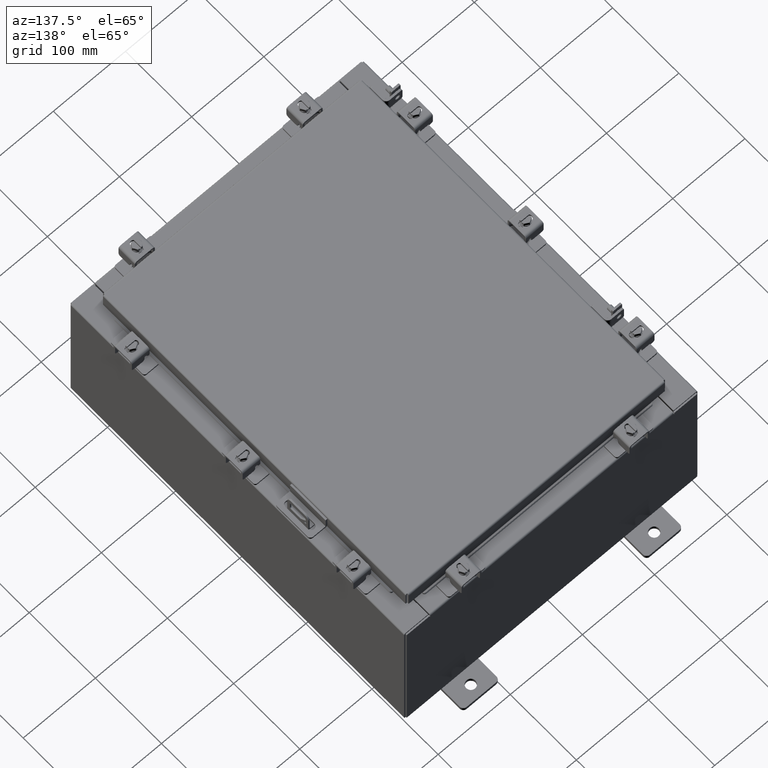
[diagram: clean part render]
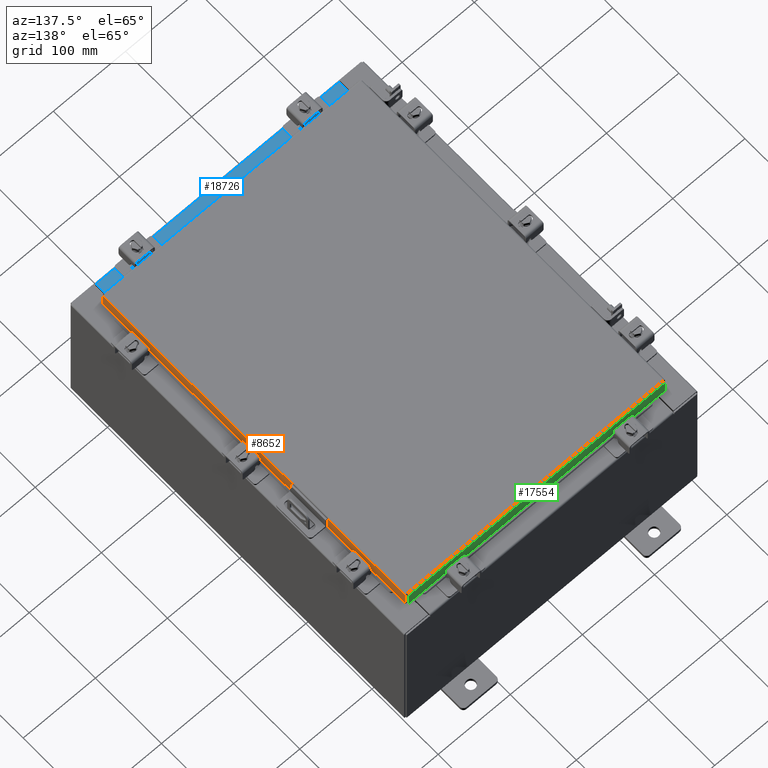
[diagram: same view with three faces highlighted in distinct colors, each labeled with its STEP entity id]
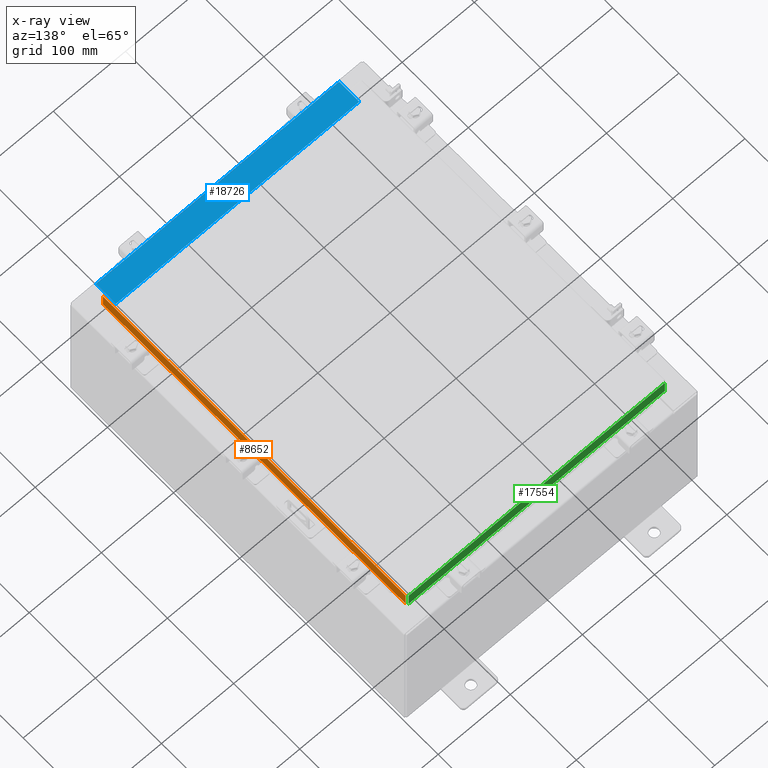
[diagram: x-ray of the same camera — body ghosted, the three highlighted faces saturated]
A machine part, auxiliary view with three faces highlighted in distinct colors.
The next image is the same camera in x-ray (body ghosted, the three faces saturated) — at least one of them is partly hidden behind the body in this view.
Their STEP definitions:

[orange] entity #8652 — the highlighted planar face has unit normal (1, 0, 0).
#625 = CARTESIAN_POINT ( 'NONE',  ( 7.077999999999996700, -9.005157864376272400, -0.07470000000000015500 ) ) ;
#976 = LINE ( 'NONE', #16241, #9678 ) ;
#1817 = ORIENTED_EDGE ( 'NONE', *, *, #15233, .F. ) ;
#2123 = DIRECTION ( 'NONE',  ( 0.0000000000000000000, -1.000000000000000000, 0.0000000000000000000 ) ) ;
#2505 = LINE ( 'NONE', #5254, #6595 ) ;
#4061 = DIRECTION ( 'NONE',  ( -1.693590113897317100E-031, -1.000000000000000000, 6.008022858289562200E-017 ) ) ;
#4409 = DIRECTION ( 'NONE',  ( -2.818880942772360100E-015, -6.982962677686267500E-015, 1.000000000000000000 ) ) ;
#4752 = LINE ( 'NONE', #6748, #8822 ) ;
#4958 = ORIENTED_EDGE ( 'NONE', *, *, #19438, .T. ) ;
#5254 = CARTESIAN_POINT ( 'NONE',  ( 7.077999999999996700, 9.005157864376265300, 8.304817900739359900E-014 ) ) ;
#5494 = CARTESIAN_POINT ( 'NONE',  ( 7.077999999999996700, -8.255157864376263500, -0.8500000000000020900 ) ) ;
#5655 = CARTESIAN_POINT ( 'NONE',  ( 7.077999999999999400, -9.094000000000003000, -0.8499999999999999800 ) ) ;
#5695 = LINE ( 'NONE', #15446, #19568 ) ;
#5783 = EDGE_CURVE ( 'NONE', #18057, #11327, #976, .T. ) ;
#5983 = CARTESIAN_POINT ( 'NONE',  ( 7.077999999999999400, 9.005157864376270600, -0.8499999999999999800 ) ) ;
#6595 = VECTOR ( 'NONE', #20845, 39.37007874015748100 ) ;
#6748 = CARTESIAN_POINT ( 'NONE',  ( 7.077999999999999400, -9.094000000000003000, -0.8499999999999999800 ) ) ;
#6780 = ORIENTED_EDGE ( 'NONE', *, *, #13041, .F. ) ;
#7466 = CARTESIAN_POINT ( 'NONE',  ( 7.077999999999996700, 8.255157864376267100, -0.8500000000000020900 ) ) ;
#8377 = PLANE ( 'NONE',  #19130 ) ;
#8652 = ADVANCED_FACE ( 'NONE', ( #18513 ), #8377, .T. ) ;
#8822 = VECTOR ( 'NONE', #15513, 39.37007874015748100 ) ;
#8844 = VERTEX_POINT ( 'NONE', #5494 ) ;
#9678 = VECTOR ( 'NONE', #4061, 39.37007874015748100 ) ;
#9777 = EDGE_LOOP ( 'NONE', ( #6780, #1817, #14947, #19397, #4958, #22022 ) ) ;
#10140 = DIRECTION ( 'NONE',  ( 2.818880942772360100E-015, 0.0000000000000000000, -1.000000000000000000 ) ) ;
#10516 = EDGE_CURVE ( 'NONE', #14311, #8844, #5695, .T. ) ;
#10705 = CARTESIAN_POINT ( 'NONE',  ( 7.077999999999999400, -9.005157864376267100, -0.8499999999999999800 ) ) ;
#10780 = VECTOR ( 'NONE', #2123, 39.37007874015748100 ) ;
#10977 = CARTESIAN_POINT ( 'NONE',  ( 7.077999999999996700, 9.005157864376265300, -0.08769999999999918100 ) ) ;
#11327 = VERTEX_POINT ( 'NONE', #14320 ) ;
#13041 = EDGE_CURVE ( 'NONE', #19243, #11327, #22486, .T. ) ;
#13679 = DIRECTION ( 'NONE',  ( 0.0000000000000000000, -1.000000000000000000, 0.0000000000000000000 ) ) ;
#13716 = VERTEX_POINT ( 'NONE', #5983 ) ;
#14301 = LINE ( 'NONE', #5655, #10780 ) ;
#14311 = VERTEX_POINT ( 'NONE', #7466 ) ;
#14320 = CARTESIAN_POINT ( 'NONE',  ( 7.077999999999996700, -9.005157864376272400, -0.08769999999999918100 ) ) ;
#14947 = ORIENTED_EDGE ( 'NONE', *, *, #10516, .F. ) ;
#15233 = EDGE_CURVE ( 'NONE', #8844, #19243, #4752, .T. ) ;
#15446 = CARTESIAN_POINT ( 'NONE',  ( 7.077999999999996700, 8.255157864376267100, -0.8500000000000020900 ) ) ;
#15513 = DIRECTION ( 'NONE',  ( 0.0000000000000000000, -1.000000000000000000, 0.0000000000000000000 ) ) ;
#15973 = EDGE_CURVE ( 'NONE', #13716, #14311, #14301, .T. ) ;
#16241 = CARTESIAN_POINT ( 'NONE',  ( 7.077999999999996700, -5.269035934039632300E-018, -0.08769999999999918100 ) ) ;
#17857 = VECTOR ( 'NONE', #4409, 39.37007874015748100 ) ;
#18057 = VERTEX_POINT ( 'NONE', #10977 ) ;
#18513 = FACE_OUTER_BOUND ( 'NONE', #9777, .T. ) ;
#18791 = CARTESIAN_POINT ( 'NONE',  ( 7.077999999999996700, 0.0000000000000000000, 1.966930555438269700E-014 ) ) ;
#19130 = AXIS2_PLACEMENT_3D ( 'NONE', #18791, #20569, #10140 ) ;
#19243 = VERTEX_POINT ( 'NONE', #10705 ) ;
#19397 = ORIENTED_EDGE ( 'NONE', *, *, #15973, .F. ) ;
#19438 = EDGE_CURVE ( 'NONE', #13716, #18057, #2505, .T. ) ;
#19568 = VECTOR ( 'NONE', #13679, 39.37007874015748100 ) ;
#20569 = DIRECTION ( 'NONE',  ( 1.000000000000000000, 0.0000000000000000000, 2.818880942772360100E-015 ) ) ;
#20845 = DIRECTION ( 'NONE',  ( -2.818880942772360100E-015, -6.982962677686267500E-015, 1.000000000000000000 ) ) ;
#22022 = ORIENTED_EDGE ( 'NONE', *, *, #5783, .T. ) ;
#22486 = LINE ( 'NONE', #625, #17857 ) ;

[blue] entity #18726 — the highlighted planar face has unit normal (-0, -0, 1).
#252 = VERTEX_POINT ( 'NONE', #21983 ) ;
#738 = EDGE_LOOP ( 'NONE', ( #17383, #16889, #4032, #20222 ) ) ;
#1307 = AXIS2_PLACEMENT_3D ( 'NONE', #19787, #16358, #5932 ) ;
#1538 = LINE ( 'NONE', #21579, #21954 ) ;
#1633 = EDGE_CURVE ( 'NONE', #20615, #252, #13666, .T. ) ;
#2678 = DIRECTION ( 'NONE',  ( -1.000000000000000000, -5.376446204297056400E-017, -1.665334536937734800E-016 ) ) ;
#3771 = DIRECTION ( 'NONE',  ( -5.376446204296997200E-017, -1.000000000000000000, 3.599933028129398900E-015 ) ) ;
#4016 = PLANE ( 'NONE',  #1307 ) ;
#4032 = ORIENTED_EDGE ( 'NONE', *, *, #1633, .F. ) ;
#5932 = DIRECTION ( 'NONE',  ( -5.376446204296997200E-017, -1.000000000000000000, 3.599933028129398900E-015 ) ) ;
#6426 = CARTESIAN_POINT ( 'NONE',  ( 6.637199999999999100, -0.08770000000000026400, 4.000000000000000900 ) ) ;
#6611 = CARTESIAN_POINT ( 'NONE',  ( -6.637200000000000000, -1.287299999999999200, 4.000000000000003600 ) ) ;
#9147 = LINE ( 'NONE', #9928, #13778 ) ;
#9928 = CARTESIAN_POINT ( 'NONE',  ( 6.637200000000000900, -1.287300000000000300, 4.000000000000003600 ) ) ;
#12886 = DIRECTION ( 'NONE',  ( 5.376446204296997200E-017, 1.000000000000000000, -3.599933028129398900E-015 ) ) ;
#13233 = VERTEX_POINT ( 'NONE', #6611 ) ;
#13666 = LINE ( 'NONE', #16731, #18294 ) ;
#13778 = VECTOR ( 'NONE', #16922, 39.37007874015748100 ) ;
#13899 = EDGE_CURVE ( 'NONE', #252, #13233, #9147, .T. ) ;
#14034 = VECTOR ( 'NONE', #2678, 39.37007874015748100 ) ;
#14490 = FACE_OUTER_BOUND ( 'NONE', #738, .T. ) ;
#14560 = LINE ( 'NONE', #20031, #14034 ) ;
#15311 = CARTESIAN_POINT ( 'NONE',  ( -6.637200000000000000, -0.08770000000000026400, 3.999999999999998200 ) ) ;
#15512 = EDGE_CURVE ( 'NONE', #13233, #20697, #1538, .T. ) ;
#16234 = EDGE_CURVE ( 'NONE', #20615, #20697, #14560, .T. ) ;
#16358 = DIRECTION ( 'NONE',  ( 1.665334536937734800E-016, 3.599933028129398900E-015, 1.000000000000000000 ) ) ;
#16731 = CARTESIAN_POINT ( 'NONE',  ( 6.637200000000000000, -1.300300000000000200, 4.000000000000004400 ) ) ;
#16889 = ORIENTED_EDGE ( 'NONE', *, *, #13899, .F. ) ;
#16922 = DIRECTION ( 'NONE',  ( -1.000000000000000000, -5.376446204297056400E-017, -1.665334536937734800E-016 ) ) ;
#17383 = ORIENTED_EDGE ( 'NONE', *, *, #15512, .F. ) ;
#18294 = VECTOR ( 'NONE', #3771, 39.37007874015748100 ) ;
#18726 = ADVANCED_FACE ( 'NONE', ( #14490 ), #4016, .T. ) ;
#19787 = CARTESIAN_POINT ( 'NONE',  ( 6.661338148662792400E-016, 1.311287036958846300E-014, 3.999999999999999600 ) ) ;
#20031 = CARTESIAN_POINT ( 'NONE',  ( 6.614186711504172100E-016, -0.08770000000000026400, 3.999999999999999600 ) ) ;
#20222 = ORIENTED_EDGE ( 'NONE', *, *, #16234, .T. ) ;
#20615 = VERTEX_POINT ( 'NONE', #6426 ) ;
#20697 = VERTEX_POINT ( 'NONE', #15311 ) ;
#21579 = CARTESIAN_POINT ( 'NONE',  ( -6.637200000000000000, -0.07470000000000015500, 3.999999999999998200 ) ) ;
#21954 = VECTOR ( 'NONE', #12886, 39.37007874015748100 ) ;
#21983 = CARTESIAN_POINT ( 'NONE',  ( 6.637200000000000000, -1.287300000000000300, 4.000000000000004400 ) ) ;

[green] entity #17554 — the highlighted planar face has unit normal (0, -1, -0).
#343 = ORIENTED_EDGE ( 'NONE', *, *, #18664, .F. ) ;
#437 = VECTOR ( 'NONE', #12582, 39.37007874015748100 ) ;
#1188 = VECTOR ( 'NONE', #14352, 39.37007874015748100 ) ;
#1631 = DIRECTION ( 'NONE',  ( -0.0000000000000000000, 2.818880942772353800E-015, -1.000000000000000000 ) ) ;
#1738 = LINE ( 'NONE', #12047, #5830 ) ;
#2331 = ORIENTED_EDGE ( 'NONE', *, *, #21551, .F. ) ;
#2723 = VERTEX_POINT ( 'NONE', #14392 ) ;
#2928 = EDGE_LOOP ( 'NONE', ( #2331, #16581, #16392, #13281, #343, #10703 ) ) ;
#4578 = VERTEX_POINT ( 'NONE', #11258 ) ;
#5381 = AXIS2_PLACEMENT_3D ( 'NONE', #16566, #21811, #11382 ) ;
#5495 = LINE ( 'NONE', #7754, #18803 ) ;
#5830 = VECTOR ( 'NONE', #1631, 39.37007874015748100 ) ;
#6286 = LINE ( 'NONE', #16838, #14983 ) ;
#6619 = EDGE_CURVE ( 'NONE', #2723, #8742, #1738, .T. ) ;
#7377 = CARTESIAN_POINT ( 'NONE',  ( -7.078000000000003800, 9.093999999999999400, -0.8500000000000010900 ) ) ;
#7754 = CARTESIAN_POINT ( 'NONE',  ( -6.239157864376272400, 9.093999999999999400, -0.8500000000000020900 ) ) ;
#7850 = EDGE_CURVE ( 'NONE', #4578, #11844, #5495, .T. ) ;
#8357 = CARTESIAN_POINT ( 'NONE',  ( 6.989157864376266200, 9.093999999999999400, -0.8499999999999999800 ) ) ;
#8601 = EDGE_CURVE ( 'NONE', #11390, #14672, #6286, .T. ) ;
#8742 = VERTEX_POINT ( 'NONE', #10367 ) ;
#9088 = CARTESIAN_POINT ( 'NONE',  ( -7.078000000000003800, 9.093999999999999400, -0.8500000000000010900 ) ) ;
#10335 = CARTESIAN_POINT ( 'NONE',  ( -7.078000000000003800, 9.093999999999995900, -0.08770000000000026400 ) ) ;
#10367 = CARTESIAN_POINT ( 'NONE',  ( -6.989157864376273300, 9.093999999999999400, -0.8500000000000010900 ) ) ;
#10441 = LINE ( 'NONE', #7377, #1188 ) ;
#10445 = CARTESIAN_POINT ( 'NONE',  ( 6.239157864376261700, 9.093999999999999400, -0.8500000000000020900 ) ) ;
#10703 = ORIENTED_EDGE ( 'NONE', *, *, #6619, .F. ) ;
#11155 = DIRECTION ( 'NONE',  ( 1.000000000000000000, -0.0000000000000000000, -0.0000000000000000000 ) ) ;
#11258 = CARTESIAN_POINT ( 'NONE',  ( -6.239157864376272400, 9.093999999999999400, -0.8500000000000020900 ) ) ;
#11382 = DIRECTION ( 'NONE',  ( 0.0000000000000000000, 2.818880942772353800E-015, -1.000000000000000000 ) ) ;
#11390 = VERTEX_POINT ( 'NONE', #12717 ) ;
#11565 = FACE_OUTER_BOUND ( 'NONE', #2928, .T. ) ;
#11725 = DIRECTION ( 'NONE',  ( 0.0000000000000000000, 2.818880942772353800E-015, -1.000000000000000000 ) ) ;
#11844 = VERTEX_POINT ( 'NONE', #10445 ) ;
#12047 = CARTESIAN_POINT ( 'NONE',  ( -6.989157864376273300, 9.093999999999995900, -0.07470000000000015500 ) ) ;
#12202 = VECTOR ( 'NONE', #20756, 39.37007874015748100 ) ;
#12582 = DIRECTION ( 'NONE',  ( 1.000000000000000000, 4.379057701015054300E-047, 1.254380613084043100E-016 ) ) ;
#12717 = CARTESIAN_POINT ( 'NONE',  ( 6.989157864376266200, 9.093999999999995900, -0.08769999999999918100 ) ) ;
#13054 = PLANE ( 'NONE',  #5381 ) ;
#13281 = ORIENTED_EDGE ( 'NONE', *, *, #7850, .F. ) ;
#13575 = EDGE_CURVE ( 'NONE', #11844, #14672, #14282, .T. ) ;
#14282 = LINE ( 'NONE', #9088, #437 ) ;
#14352 = DIRECTION ( 'NONE',  ( 1.000000000000000000, 4.379057701015054300E-047, 1.254380613084043100E-016 ) ) ;
#14392 = CARTESIAN_POINT ( 'NONE',  ( -6.989157864376273300, 9.093999999999995900, -0.08769999999999918100 ) ) ;
#14672 = VERTEX_POINT ( 'NONE', #8357 ) ;
#14983 = VECTOR ( 'NONE', #11725, 39.37007874015748100 ) ;
#16392 = ORIENTED_EDGE ( 'NONE', *, *, #13575, .F. ) ;
#16566 = CARTESIAN_POINT ( 'NONE',  ( 0.0000000000000000000, 9.093999999999995900, 2.622574073917692700E-014 ) ) ;
#16581 = ORIENTED_EDGE ( 'NONE', *, *, #8601, .T. ) ;
#16838 = CARTESIAN_POINT ( 'NONE',  ( 6.989157864376265300, 9.093999999999995900, 2.622574073917692700E-014 ) ) ;
#17554 = ADVANCED_FACE ( 'NONE', ( #11565 ), #13054, .F. ) ;
#18664 = EDGE_CURVE ( 'NONE', #8742, #4578, #10441, .T. ) ;
#18803 = VECTOR ( 'NONE', #11155, 39.37007874015748100 ) ;
#20756 = DIRECTION ( 'NONE',  ( -1.000000000000000000, -1.359980617386811900E-031, -7.719265311286419400E-017 ) ) ;
#21485 = LINE ( 'NONE', #10335, #12202 ) ;
#21551 = EDGE_CURVE ( 'NONE', #11390, #2723, #21485, .T. ) ;
#21811 = DIRECTION ( 'NONE',  ( 3.535949605205710500E-031, -1.000000000000000000, -2.818880942772353800E-015 ) ) ;